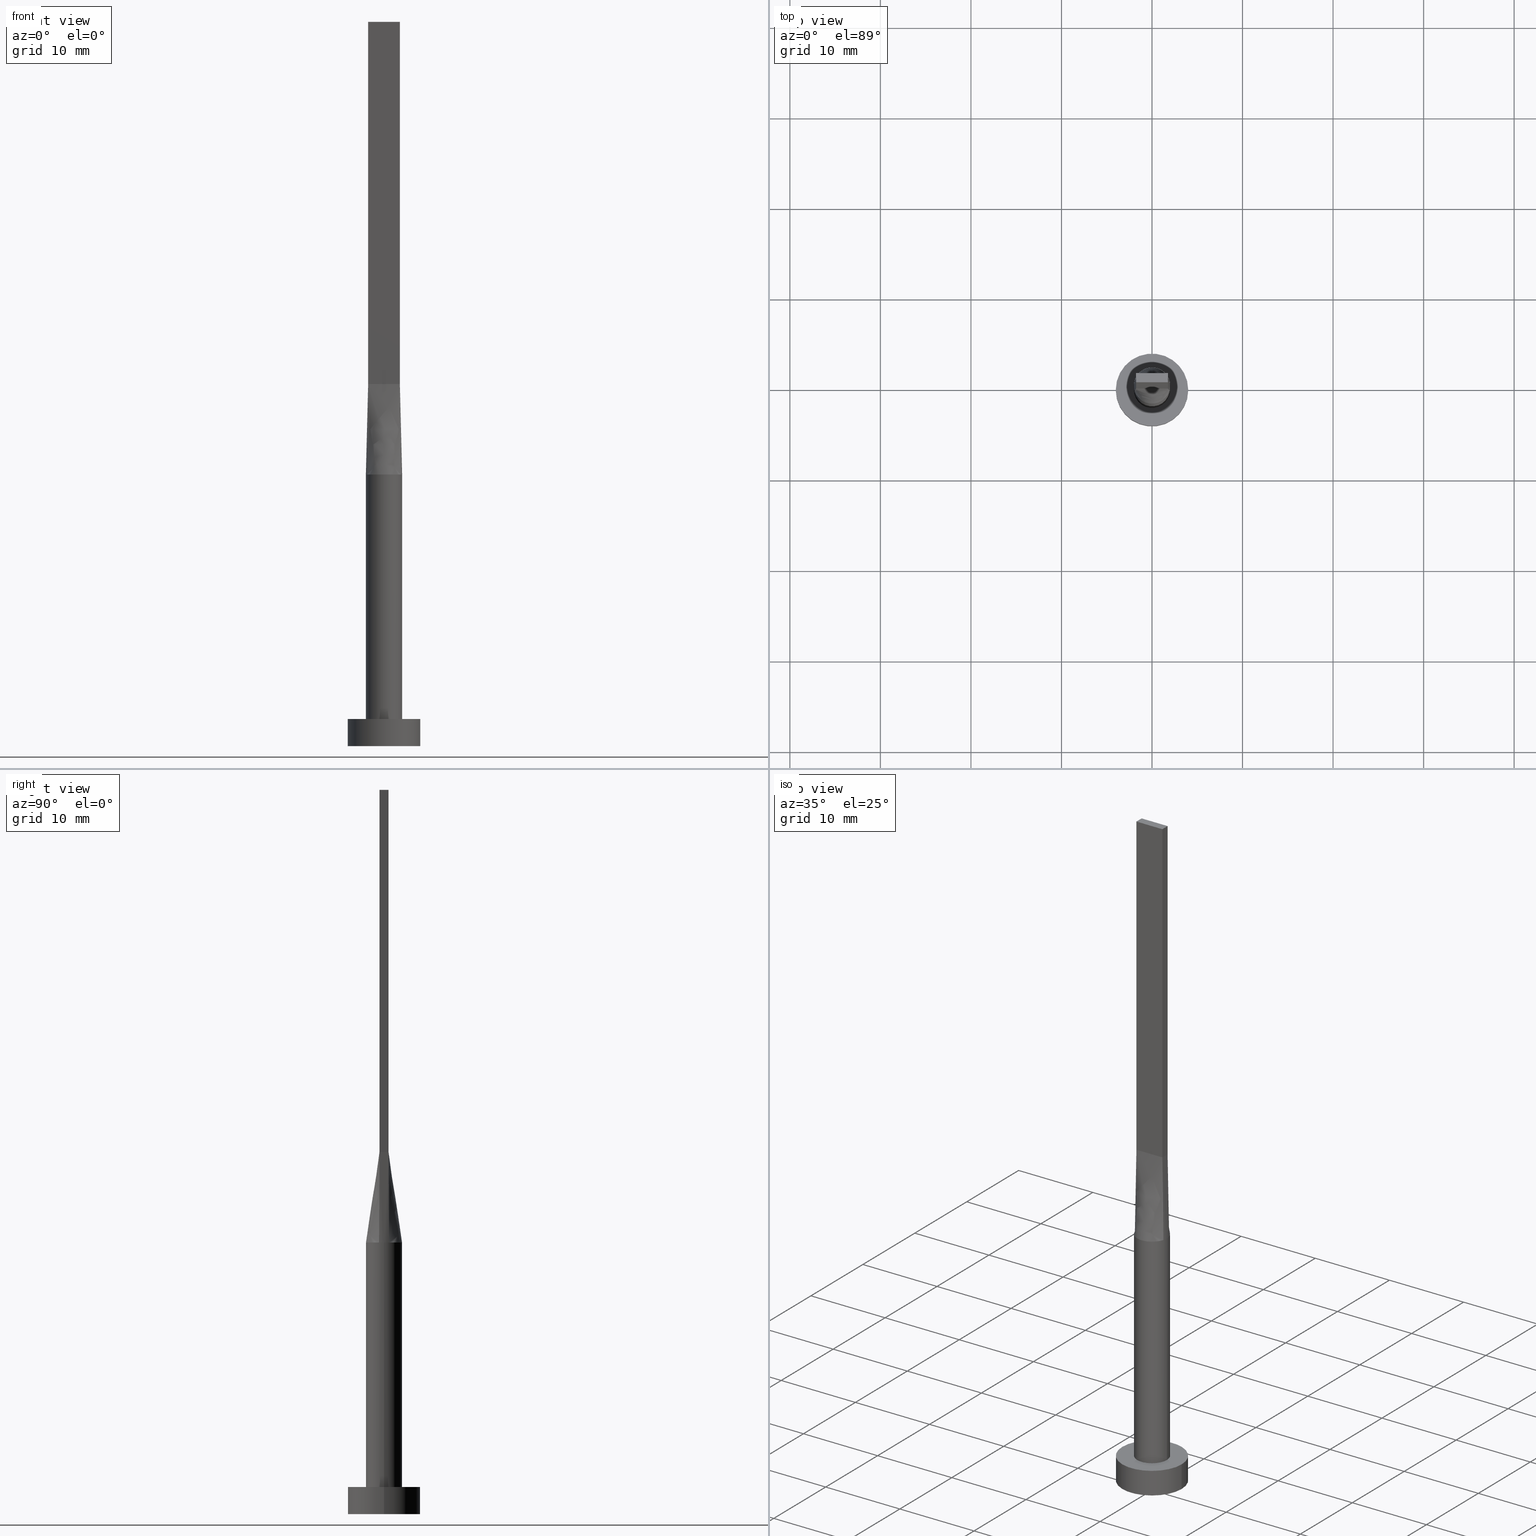
[diagram: canonical four-view strip — front | top / right | iso, engineering-drawing reading convention]
A machine part, canonical four-view strip (front | top / right | iso — engineering-drawing reading convention). The complete STEP part file that produces these views, byte-faithful:
ISO-10303-21;
HEADER;
FILE_DESCRIPTION (( 'STEP AP203' ),
    '1' );
FILE_NAME ('6dca.STEP',
    '2023-02-13T12:16:20',
    ( '' ),
    ( '' ),
    'SwSTEP 2.0',
    'SolidWorks 2019',
    '' );
FILE_SCHEMA (( 'CONFIG_CONTROL_DESIGN' ));
ENDSEC;

DATA;
#1 = AXIS2_PLACEMENT_3D ( 'NONE', #354, #523, #533 ) ;
#2 = ORIENTED_EDGE ( 'NONE', *, *, #118, .F. ) ;
#3 = EDGE_CURVE ( 'NONE', #328, #165, #161, .T. ) ;
#4 = FACE_OUTER_BOUND ( 'NONE', #305, .T. ) ;
#5 = DIRECTION ( 'NONE',  ( -2.168404344971009361E-16, -1.000000000000000000, 0.000000000000000000 ) ) ;
#6 = ADVANCED_FACE ( 'NONE', ( #524 ), #38, .T. ) ;
#7 = ORIENTED_EDGE ( 'NONE', *, *, #378, .T. ) ;
#8 = CARTESIAN_POINT ( 'NONE',  ( -1.749999999999999778, -0.3333333333333330373, 39.99999999999999289 ) ) ;
#9 = DIRECTION ( 'NONE',  ( -1.000000000000000000, 0.000000000000000000, 0.000000000000000000 ) ) ;
#10 = ADVANCED_BREP_SHAPE_REPRESENTATION ( '6dca', ( #98, #486 ), #19 ) ;
#11 = CARTESIAN_POINT ( 'NONE',  ( 0.5022746254375793917, -1.951069421695588169, 29.99999999999999645 ) ) ;
#12 = VECTOR ( 'NONE', #211, 1000.000000000000000 ) ;
#13 = PRODUCT_DEFINITION_SHAPE ( 'NONE', 'NONE',  #422 ) ;
#14 = APPLICATION_PROTOCOL_DEFINITION ( 'international standard', 'config_control_design', 1994, #179 ) ;
#15 = DIRECTION ( 'NONE',  ( -1.000000000000000000, 6.195440985631454085E-17, 0.000000000000000000 ) ) ;
#16 = DIRECTION ( 'NONE',  ( -0.000000000000000000, -0.000000000000000000, -1.000000000000000000 ) ) ;
#17 = CARTESIAN_POINT ( 'NONE',  ( 1.750000000000000000, -0.4999999999999997780, 80.00000000000000000 ) ) ;
#18 = DATE_AND_TIME ( #358, #202 ) ;
#19 =( GEOMETRIC_REPRESENTATION_CONTEXT ( 3 ) GLOBAL_UNCERTAINTY_ASSIGNED_CONTEXT ( ( #131 ) ) GLOBAL_UNIT_ASSIGNED_CONTEXT ( ( #222, #184, #104 ) ) REPRESENTATION_CONTEXT ( 'NONE', 'WORKASPACE' ) );
#20 = DIRECTION ( 'NONE',  ( -0.01730198768854150290, 0.004943425053868997360, 0.9998380887777591486 ) ) ;
#21 = B_SPLINE_SURFACE_WITH_KNOTS ( 'NONE', 3, 1, ( 
 ( #560, #380 ),
 ( #290, #512 ),
 ( #373, #239 ),
 ( #384, #32 ),
 ( #29, #476 ),
 ( #194, #111 ) ),
 .UNSPECIFIED., .F., .F., .F.,
 ( 4, 2, 4 ),
 ( 2, 2 ),
 ( 0.000000000000000000, 0.5000000000000000000, 1.000000000000000000 ),
 ( 0.000000000000000000, 1.000000000000000000 ),
 .UNSPECIFIED. ) ;
#22 = EDGE_CURVE ( 'NONE', #352, #441, #483, .T. ) ;
#23 = PERSON ( 'NEUR�EN�', 'NEUR�EN�', 'NEUR�EN�', ('NEUR�EN�'), ('NEUR�EN�'), ('NEUR�EN�') ) ;
#24 = ORIENTED_EDGE ( 'NONE', *, *, #63, .F. ) ;
#25 = SHAPE_DEFINITION_REPRESENTATION ( #13, #10 ) ;
#26 = ORIENTED_EDGE ( 'NONE', *, *, #153, .T. ) ;
#27 = DIRECTION ( 'NONE',  ( 0.000000000000000000, 0.000000000000000000, 1.000000000000000000 ) ) ;
#28 = AXIS2_PLACEMENT_3D ( 'NONE', #277, #136, #367 ) ;
#29 = CARTESIAN_POINT ( 'NONE',  ( 1.973362360690451567, 0.3733416268639386804, 30.00000000000000355 ) ) ;
#30 = PERSON_AND_ORGANIZATION ( #23, #193 ) ;
#31 = ORIENTED_EDGE ( 'NONE', *, *, #63, .T. ) ;
#32 = CARTESIAN_POINT ( 'NONE',  ( 1.749999999999999778, 0.1666666666666669905, 39.99999999999999289 ) ) ;
#33 = CARTESIAN_POINT ( 'NONE',  ( -1.812374357931688884, 0.8669367617086288780, 30.00000000000001066 ) ) ;
#34 = VERTEX_POINT ( 'NONE', #92 ) ;
#35 = CC_DESIGN_PERSON_AND_ORGANIZATION_ASSIGNMENT ( #519, #376, ( #167 ) ) ;
#36 = CARTESIAN_POINT ( 'NONE',  ( 1.923154993136894975, 0.5494733089275741778, 30.00000000000000000 ) ) ;
#37 = DIRECTION ( 'NONE',  ( 1.000000000000000000, 0.000000000000000000, -0.000000000000000000 ) ) ;
#38 = CYLINDRICAL_SURFACE ( 'NONE', #224, 4.000000000000000000 ) ;
#39 = ORIENTED_EDGE ( 'NONE', *, *, #564, .T. ) ;
#40 = LINE ( 'NONE', #492, #478 ) ;
#41 = CARTESIAN_POINT ( 'NONE',  ( 1.616149014776643522, -1.193458220519943547, 30.00000000000000711 ) ) ;
#42 = EDGE_CURVE ( 'NONE', #86, #341, #96, .T. ) ;
#43 = VERTEX_POINT ( 'NONE', #145 ) ;
#44 = ORIENTED_EDGE ( 'NONE', *, *, #543, .T. ) ;
#45 = CARTESIAN_POINT ( 'NONE',  ( -1.749999999999999778, 0.5000000000000002220, 40.00000000000000000 ) ) ;
#46 = AXIS2_PLACEMENT_3D ( 'NONE', #84, #263, #531 ) ;
#47 = CARTESIAN_POINT ( 'NONE',  ( 1.812374357931689328, 0.8669367617086293221, 30.00000000000000355 ) ) ;
#48 = ORIENTED_EDGE ( 'NONE', *, *, #155, .F. ) ;
#49 = CARTESIAN_POINT ( 'NONE',  ( -1.999999999999999556, -0.1867399261870113791, 30.00000000000000000 ) ) ;
#50 = CARTESIAN_POINT ( 'NONE',  ( -1.749999999999999778, 0.5000000000000002220, 80.00000000000000000 ) ) ;
#51 = CARTESIAN_POINT ( 'NONE',  ( 0.000000000000000000, 0.000000000000000000, 30.00000000000000000 ) ) ;
#52 = CARTESIAN_POINT ( 'NONE',  ( -0.9545234919502417759, -1.774214358793529067, 30.00000000000000355 ) ) ;
#53 = VERTEX_POINT ( 'NONE', #330 ) ;
#54 = APPROVAL_PERSON_ORGANIZATION ( #513, #232, #322 ) ;
#55 = ORIENTED_EDGE ( 'NONE', *, *, #42, .T. ) ;
#56 = AXIS2_PLACEMENT_3D ( 'NONE', #321, #283, #467 ) ;
#57 = CARTESIAN_POINT ( 'NONE',  ( 2.000000000000000000, 2.449293598294706414E-16, 30.00000000000000000 ) ) ;
#58 = CARTESIAN_POINT ( 'NONE',  ( 0.000000000000000000, 0.000000000000000000, 0.000000000000000000 ) ) ;
#59 = CARTESIAN_POINT ( 'NONE',  ( -2.000000000000000000, 0.000000000000000000, 30.00000000000000000 ) ) ;
#60 = EDGE_CURVE ( 'NONE', #301, #353, #325, .T. ) ;
#61 = APPROVAL_ROLE ( '' ) ;
#62 = DIRECTION ( 'NONE',  ( -2.168404344971009361E-16, -1.000000000000000000, 0.000000000000000000 ) ) ;
#63 = EDGE_CURVE ( 'NONE', #53, #352, #233, .T. ) ;
#64 = CARTESIAN_POINT ( 'NONE',  ( -1.750000000000000000, -0.4999999999999995559, 40.00000000000000000 ) ) ;
#65 = CIRCLE ( 'NONE', #56, 2.000000000000000000 ) ;
#66 = CALENDAR_DATE ( 2023, 13, 2 ) ;
#67 = EDGE_LOOP ( 'NONE', ( #79, #487, #26, #7 ) ) ;
#68 = FACE_OUTER_BOUND ( 'NONE', #342, .T. ) ;
#69 = DATE_AND_TIME ( #76, #269 ) ;
#70 = EDGE_LOOP ( 'NONE', ( #78, #162, #396, #267, #410 ) ) ;
#71 = CARTESIAN_POINT ( 'NONE',  ( 0.1458333333333326209, 0.5000000000000002220, 40.00000000000000000 ) ) ;
#72 = DIRECTION ( 'NONE',  ( 0.000000000000000000, 0.000000000000000000, 1.000000000000000000 ) ) ;
#73 = CC_DESIGN_SECURITY_CLASSIFICATION ( #167, ( #298 ) ) ;
#74 = ORIENTED_EDGE ( 'NONE', *, *, #281, .T. ) ;
#75 = CARTESIAN_POINT ( 'NONE',  ( 1.923047895281646325, 0.5494422557947561403, 30.00000000000000000 ) ) ;
#76 = CALENDAR_DATE ( 2023, 13, 2 ) ;
#77 = CARTESIAN_POINT ( 'NONE',  ( -1.166666666666666519, 0.5000000000000002220, 39.99999999999999289 ) ) ;
#78 = ORIENTED_EDGE ( 'NONE', *, *, #160, .T. ) ;
#79 = ORIENTED_EDGE ( 'NONE', *, *, #169, .F. ) ;
#80 = CARTESIAN_POINT ( 'NONE',  ( -1.973362360690451345, -0.3733416268639377367, 30.00000000000000355 ) ) ;
#81 = CIRCLE ( 'NONE', #571, 4.000000000000000000 ) ;
#82 = CARTESIAN_POINT ( 'NONE',  ( -1.749999999999999778, 0.5000000000000002220, 80.00000000000000000 ) ) ;
#83 = ORIENTED_EDGE ( 'NONE', *, *, #3, .F. ) ;
#84 = CARTESIAN_POINT ( 'NONE',  ( 0.000000000000000000, 0.000000000000000000, 0.000000000000000000 ) ) ;
#85 = LINE ( 'NONE', #50, #134 ) ;
#86 = VERTEX_POINT ( 'NONE', #17 ) ;
#87 = ORIENTED_EDGE ( 'NONE', *, *, #132, .F. ) ;
#88 = DIRECTION ( 'NONE',  ( -0.000000000000000000, -0.000000000000000000, -1.000000000000000000 ) ) ;
#89 = ORIENTED_EDGE ( 'NONE', *, *, #118, .T. ) ;
#90 = CARTESIAN_POINT ( 'NONE',  ( -2.000000000000000000, 0.000000000000000000, 3.000000000000000000 ) ) ;
#91 = CARTESIAN_POINT ( 'NONE',  ( -0.2916666666666685725, -0.4999999999999995559, 39.99999999999999289 ) ) ;
#92 = CARTESIAN_POINT ( 'NONE',  ( 2.000000000000000000, 2.449293598294706414E-16, 3.000000000000000000 ) ) ;
#93 = ADVANCED_FACE ( 'NONE', ( #425 ), #536, .T. ) ;
#94 = CARTESIAN_POINT ( 'NONE',  ( 0.000000000000000000, 0.000000000000000000, 3.000000000000000000 ) ) ;
#95 = B_SPLINE_SURFACE_WITH_KNOTS ( 'NONE', 3, 1, ( 
 ( #450, #45 ),
 ( #124, #126 ),
 ( #398, #208 ),
 ( #49, #218 ),
 ( #80, #8 ),
 ( #455, #302 ) ),
 .UNSPECIFIED., .F., .F., .F.,
 ( 4, 2, 4 ),
 ( 2, 2 ),
 ( 0.000000000000000000, 0.5000000000000000000, 1.000000000000000000 ),
 ( 0.000000000000000000, 1.000000000000000000 ),
 .UNSPECIFIED. ) ;
#96 = LINE ( 'NONE', #152, #499 ) ;
#97 = ADVANCED_FACE ( 'NONE', ( #164 ), #344, .F. ) ;
#98 = MANIFOLD_SOLID_BREP ( 'P�idat vysunut�m5', #157 ) ;
#99 = ORIENTED_EDGE ( 'NONE', *, *, #3, .T. ) ;
#100 = DIRECTION ( 'NONE',  ( 1.000000000000000000, 0.000000000000000000, 0.000000000000000000 ) ) ;
#101 = FACE_OUTER_BOUND ( 'NONE', #189, .T. ) ;
#102 = DIRECTION ( 'NONE',  ( -0.000000000000000000, -0.000000000000000000, -1.000000000000000000 ) ) ;
#103 = ORIENTED_EDGE ( 'NONE', *, *, #274, .T. ) ;
#104 =( NAMED_UNIT ( * ) SI_UNIT ( $, .STERADIAN. ) SOLID_ANGLE_UNIT ( ) );
#105 = FACE_BOUND ( 'NONE', #557, .T. ) ;
#106 = APPROVAL_ROLE ( '' ) ;
#107 = CARTESIAN_POINT ( 'NONE',  ( 0.000000000000000000, 0.000000000000000000, 3.000000000000000000 ) ) ;
#108 = AXIS2_PLACEMENT_3D ( 'NONE', #168, #270, #491 ) ;
#109 = CARTESIAN_POINT ( 'NONE',  ( 1.749999999999998890, 0.5000000000000002220, 40.00000000000000000 ) ) ;
#110 = APPROVAL_DATE_TIME ( #288, #232 ) ;
#111 = CARTESIAN_POINT ( 'NONE',  ( 1.749999999999999778, 0.5000000000000002220, 40.00000000000000000 ) ) ;
#112 = CC_DESIGN_APPROVAL ( #477, ( #422 ) ) ;
#113 = CARTESIAN_POINT ( 'NONE',  ( 0.5022746254375803909, 1.951069421695587947, 29.99999999999999645 ) ) ;
#114 = ADVANCED_FACE ( 'NONE', ( #395 ), #121, .T. ) ;
#115 = CARTESIAN_POINT ( 'NONE',  ( 1.155438169178558461, 1.647245198242353714, 29.99999999999999645 ) ) ;
#116 = CARTESIAN_POINT ( 'NONE',  ( -0.5022746254375797248, 1.951069421695588169, 29.99999999999999645 ) ) ;
#117 = CARTESIAN_POINT ( 'NONE',  ( 1.923186205402444449, -0.5494823831763672173, 30.00000000000000000 ) ) ;
#118 = EDGE_CURVE ( 'NONE', #328, #43, #85, .T. ) ;
#119 = ORIENTED_EDGE ( 'NONE', *, *, #22, .T. ) ;
#120 = LINE ( 'NONE', #526, #12 ) ;
#121 = CYLINDRICAL_SURFACE ( 'NONE', #108, 4.000000000000000000 ) ;
#122 = AXIS2_PLACEMENT_3D ( 'NONE', #538, #580, #268 ) ;
#123 = CIRCLE ( 'NONE', #510, 2.000000000000000000 ) ;
#124 = CARTESIAN_POINT ( 'NONE',  ( -1.973362360690451567, 0.3733416268639390134, 30.00000000000000000 ) ) ;
#125 = CARTESIAN_POINT ( 'NONE',  ( 0.9545234919502409987, 1.774214358793529955, 30.00000000000000355 ) ) ;
#126 = CARTESIAN_POINT ( 'NONE',  ( -1.749999999999999778, 0.3333333333333334259, 39.99999999999999289 ) ) ;
#127 = CARTESIAN_POINT ( 'NONE',  ( -1.486037034853320060, -1.356520562679217390, 29.99999999999999645 ) ) ;
#128 = CARTESIAN_POINT ( 'NONE',  ( 0.2514338042514535632, 1.999999999999999556, 30.00000000000000355 ) ) ;
#129 = CARTESIAN_POINT ( 'NONE',  ( -1.923179810488875541, 0.5494804890868837388, 30.00000000000000000 ) ) ;
#130 = DIRECTION ( 'NONE',  ( -1.000000000000000000, -0.000000000000000000, -0.000000000000000000 ) ) ;
#131 = UNCERTAINTY_MEASURE_WITH_UNIT (LENGTH_MEASURE( 1.000000000000000082E-05 ), #222, 'distance_accuracy_value', 'NONE');
#132 = EDGE_CURVE ( 'NONE', #413, #165, #172, .T. ) ;
#133 = CARTESIAN_POINT ( 'NONE',  ( -0.5022746254375797248, 1.951069421695588169, 29.99999999999999645 ) ) ;
#134 = VECTOR ( 'NONE', #5, 1000.000000000000000 ) ;
#135 = CARTESIAN_POINT ( 'NONE',  ( 1.486037034853319616, -1.356520562679219166, 30.00000000000001066 ) ) ;
#136 = DIRECTION ( 'NONE',  ( 0.000000000000000000, 0.000000000000000000, 1.000000000000000000 ) ) ;
#137 = CC_DESIGN_PERSON_AND_ORGANIZATION_ASSIGNMENT ( #237, #565, ( #298 ) ) ;
#138 = DIRECTION ( 'NONE',  ( 0.000000000000000000, 0.000000000000000000, 1.000000000000000000 ) ) ;
#139 = CARTESIAN_POINT ( 'NONE',  ( 4.000000000000000000, 4.898587196589412829E-16, 3.000000000000000000 ) ) ;
#140 = PERSON_AND_ORGANIZATION ( #23, #193 ) ;
#141 = AXIS2_PLACEMENT_3D ( 'NONE', #350, #213, #581 ) ;
#142 = CARTESIAN_POINT ( 'NONE',  ( -1.749999999999999778, 0.5000000000000002220, 40.00000000000000000 ) ) ;
#143 = CARTESIAN_POINT ( 'NONE',  ( -1.750000000000000000, -0.4999999999999995559, 40.00000000000000000 ) ) ;
#144 = DIRECTION ( 'NONE',  ( 1.000000000000000000, 0.000000000000000000, 0.000000000000000000 ) ) ;
#145 = CARTESIAN_POINT ( 'NONE',  ( -1.750000000000000000, -0.4999999999999995559, 80.00000000000000000 ) ) ;
#146 = PERSON_AND_ORGANIZATION_ROLE ( 'creator' ) ;
#147 = LINE ( 'NONE', #142, #562 ) ;
#148 = CC_DESIGN_PERSON_AND_ORGANIZATION_ASSIGNMENT ( #30, #146, ( #422 ) ) ;
#149 = CIRCLE ( 'NONE', #509, 2.000000000000000000 ) ;
#150 = APPROVAL_STATUS ( 'not_yet_approved' ) ;
#151 = CARTESIAN_POINT ( 'NONE',  ( -1.749999999999999778, 0.5000000000000002220, 80.00000000000000000 ) ) ;
#152 = CARTESIAN_POINT ( 'NONE',  ( 1.750000000000000000, -0.4999999999999997780, 80.00000000000000000 ) ) ;
#153 = EDGE_CURVE ( 'NONE', #471, #559, #309, .T. ) ;
#154 = CARTESIAN_POINT ( 'NONE',  ( 1.020833333333332371, 0.5000000000000002220, 39.99999999999999289 ) ) ;
#155 = EDGE_CURVE ( 'NONE', #53, #34, #223, .T. ) ;
#156 = CARTESIAN_POINT ( 'NONE',  ( -1.486037034853319616, 1.356520562679218056, 30.00000000000000355 ) ) ;
#157 = CLOSED_SHELL ( 'NONE', ( #409, #6, #114, #236, #501, #432, #93, #338, #494, #346, #469, #527, #216, #97, #190 ) ) ;
#158 = ORIENTED_EDGE ( 'NONE', *, *, #155, .T. ) ;
#159 = CARTESIAN_POINT ( 'NONE',  ( -1.155438169178558017, 1.647245198242353936, 30.00000000000000711 ) ) ;
#160 = EDGE_CURVE ( 'NONE', #441, #518, #406, .T. ) ;
#161 = LINE ( 'NONE', #205, #541 ) ;
#162 = ORIENTED_EDGE ( 'NONE', *, *, #574, .T. ) ;
#163 = CARTESIAN_POINT ( 'NONE',  ( -2.000000000000000000, 8.710755549421510381E-17, 30.00000000000000000 ) ) ;
#164 = FACE_OUTER_BOUND ( 'NONE', #385, .T. ) ;
#165 = VERTEX_POINT ( 'NONE', #551 ) ;
#166 = CYLINDRICAL_SURFACE ( 'NONE', #347, 2.000000000000000000 ) ;
#167 = SECURITY_CLASSIFICATION ( '', '', #426 ) ;
#168 = CARTESIAN_POINT ( 'NONE',  ( 0.000000000000000000, 0.000000000000000000, 3.000000000000000000 ) ) ;
#169 = EDGE_CURVE ( 'NONE', #530, #241, #185, .T. ) ;
#170 = DIRECTION ( 'NONE',  ( -1.000000000000000000, 0.000000000000000000, 0.000000000000000000 ) ) ;
#171 = FACE_OUTER_BOUND ( 'NONE', #70, .T. ) ;
#172 = LINE ( 'NONE', #539, #214 ) ;
#173 = ORIENTED_EDGE ( 'NONE', *, *, #175, .T. ) ;
#174 = PLANE ( 'NONE',  #517 ) ;
#175 = EDGE_CURVE ( 'NONE', #484, #238, #459, .T. ) ;
#176 = CARTESIAN_POINT ( 'NONE',  ( 1.879022738048941710, -0.7035303061092221810, 30.00000000000000000 ) ) ;
#177 = CARTESIAN_POINT ( 'NONE',  ( 1.155438169178558017, -1.647245198242354158, 30.00000000000001066 ) ) ;
#178 = VECTOR ( 'NONE', #88, 1000.000000000000000 ) ;
#179 = APPLICATION_CONTEXT ( 'configuration controlled 3d designs of mechanical parts and assemblies' ) ;
#180 = CARTESIAN_POINT ( 'NONE',  ( -1.812374357931688884, 0.8669367617086288780, 30.00000000000001066 ) ) ;
#181 = PRODUCT ( '6dca', '6dca', '', ( #228 ) ) ;
#182 = VECTOR ( 'NONE', #365, 1000.000000000000227 ) ;
#183 = ORIENTED_EDGE ( 'NONE', *, *, #564, .F. ) ;
#184 =( NAMED_UNIT ( * ) PLANE_ANGLE_UNIT ( ) SI_UNIT ( $, .RADIAN. ) );
#185 = LINE ( 'NONE', #139, #375 ) ;
#186 = FACE_OUTER_BOUND ( 'NONE', #444, .T. ) ;
#187 = DESIGN_CONTEXT ( 'detailed design', #265, 'design' ) ;
#188 = CARTESIAN_POINT ( 'NONE',  ( 1.750000000000000000, -0.4999999999999997780, 40.00000000000000000 ) ) ;
#189 = EDGE_LOOP ( 'NONE', ( #39, #449, #386, #217 ) ) ;
#190 = ADVANCED_FACE ( 'NONE', ( #318 ), #227, .T. ) ;
#191 = VECTOR ( 'NONE', #361, 1000.000000000000000 ) ;
#192 = PERSON_AND_ORGANIZATION_ROLE ( 'design_supplier' ) ;
#193 = ORGANIZATION ( 'NEUR�EN�', 'NEUR�EN�', '' ) ;
#194 = CARTESIAN_POINT ( 'NONE',  ( 1.923047895281646325, 0.5494422557947563623, 30.00000000000000000 ) ) ;
#195 = AXIS2_PLACEMENT_3D ( 'NONE', #107, #27, #286 ) ;
#196 = DIRECTION ( 'NONE',  ( 1.000000000000000000, 0.000000000000000000, 0.000000000000000000 ) ) ;
#197 = DATE_TIME_ROLE ( 'classification_date' ) ;
#198 = CARTESIAN_POINT ( 'NONE',  ( 1.749999999999999778, 0.5000000000000002220, 80.00000000000000000 ) ) ;
#199 = CARTESIAN_POINT ( 'NONE',  ( -0.1458333333333353687, -0.4999999999999995559, 40.00000000000000000 ) ) ;
#200 = CARTESIAN_POINT ( 'NONE',  ( 0.2916666666666658525, 0.5000000000000002220, 39.99999999999999289 ) ) ;
#201 = ORIENTED_EDGE ( 'NONE', *, *, #22, .F. ) ;
#202 = LOCAL_TIME ( 13, 16, 20.00000000000000000, #414 ) ;
#203 = ORIENTED_EDGE ( 'NONE', *, *, #153, .F. ) ;
#204 = CARTESIAN_POINT ( 'NONE',  ( -1.923161340940673369, -0.5494751859438878894, 30.00000000000000000 ) ) ;
#205 = CARTESIAN_POINT ( 'NONE',  ( -1.749999999999999778, 0.5000000000000002220, 80.00000000000000000 ) ) ;
#206 = CARTESIAN_POINT ( 'NONE',  ( 1.749999999999999778, 0.5000000000000002220, 80.00000000000000000 ) ) ;
#207 = CARTESIAN_POINT ( 'NONE',  ( 0.000000000000000000, 0.000000000000000000, 3.000000000000000000 ) ) ;
#208 = CARTESIAN_POINT ( 'NONE',  ( -1.749999999999999778, 0.1666666666666667129, 39.99999999999999289 ) ) ;
#209 = CARTESIAN_POINT ( 'NONE',  ( 1.812374357931689106, -0.8669367617086289890, 30.00000000000001066 ) ) ;
#210 = EDGE_LOOP ( 'NONE', ( #48, #355, #402, #259, #368, #103 ) ) ;
#211 = DIRECTION ( 'NONE',  ( 1.000000000000000000, -6.195440985631454085E-17, 0.000000000000000000 ) ) ;
#212 = VECTOR ( 'NONE', #417, 1000.000000000000000 ) ;
#213 = DIRECTION ( 'NONE',  ( -1.000000000000000000, -2.168404344971008868E-16, 0.000000000000000000 ) ) ;
#214 = VECTOR ( 'NONE', #130, 1000.000000000000000 ) ;
#215 = CARTESIAN_POINT ( 'NONE',  ( 0.5022746254375803909, 1.951069421695587947, 29.99999999999999645 ) ) ;
#216 = ADVANCED_FACE ( 'NONE', ( #101 ), #408, .F. ) ;
#217 = ORIENTED_EDGE ( 'NONE', *, *, #549, .T. ) ;
#218 = CARTESIAN_POINT ( 'NONE',  ( -1.749999999999999778, -0.1666666666666665186, 39.99999999999999289 ) ) ;
#219 = CARTESIAN_POINT ( 'NONE',  ( 1.458333333333332815, -0.4999999999999996669, 39.99999999999999289 ) ) ;
#220 = DIRECTION ( 'NONE',  ( -1.000000000000000000, 0.000000000000000000, 0.000000000000000000 ) ) ;
#221 = CARTESIAN_POINT ( 'NONE',  ( -1.155438169178558017, 1.647245198242353936, 30.00000000000000711 ) ) ;
#222 =( LENGTH_UNIT ( ) NAMED_UNIT ( * ) SI_UNIT ( .MILLI., .METRE. ) );
#223 = LINE ( 'NONE', #57, #278 ) ;
#224 = AXIS2_PLACEMENT_3D ( 'NONE', #207, #389, #170 ) ;
#225 = ORIENTED_EDGE ( 'NONE', *, *, #429, .T. ) ;
#226 = DIRECTION ( 'NONE',  ( 2.168404344971009361E-16, 1.000000000000000000, 0.000000000000000000 ) ) ;
#227 = PLANE ( 'NONE',  #28 ) ;
#228 = MECHANICAL_CONTEXT ( 'NONE', #179, 'mechanical' ) ;
#229 = DIRECTION ( 'NONE',  ( 0.000000000000000000, 0.000000000000000000, 1.000000000000000000 ) ) ;
#230 = DIRECTION ( 'NONE',  ( 1.000000000000000000, 0.000000000000000000, 0.000000000000000000 ) ) ;
#231 = CIRCLE ( 'NONE', #1, 2.000000000000000000 ) ;
#232 = APPROVAL ( #470, 'NEUR�EN�' ) ;
#233 = CIRCLE ( 'NONE', #247, 2.000000000000000000 ) ;
#234 = DIRECTION ( 'NONE',  ( 6.195440985631454085E-17, 1.000000000000000000, -0.000000000000000000 ) ) ;
#235 = CARTESIAN_POINT ( 'NONE',  ( -1.166666666666667851, -0.4999999999999995559, 39.99999999999999289 ) ) ;
#236 = ADVANCED_FACE ( 'NONE', ( #105, #186 ), #362, .T. ) ;
#237 = PERSON_AND_ORGANIZATION ( #23, #193 ) ;
#238 = VERTEX_POINT ( 'NONE', #188 ) ;
#239 = CARTESIAN_POINT ( 'NONE',  ( 1.749999999999999778, -0.1666666666666663243, 39.99999999999999289 ) ) ;
#240 = DIRECTION ( 'NONE',  ( -0.01730198768854152372, -0.004943425053868953992, -0.9998380887777591486 ) ) ;
#241 = VERTEX_POINT ( 'NONE', #558 ) ;
#242 = CARTESIAN_POINT ( 'NONE',  ( -0.2916666666666674623, 0.5000000000000002220, 39.99999999999999289 ) ) ;
#243 = CARTESIAN_POINT ( 'NONE',  ( -1.879022738048942598, -0.7035303061092208488, 30.00000000000000355 ) ) ;
#244 = PERSON_AND_ORGANIZATION ( #23, #193 ) ;
#245 = ORIENTED_EDGE ( 'NONE', *, *, #388, .F. ) ;
#246 = CARTESIAN_POINT ( 'NONE',  ( 1.166666666666665630, 0.5000000000000002220, 39.99999999999999289 ) ) ;
#247 = AXIS2_PLACEMENT_3D ( 'NONE', #371, #72, #196 ) ;
#248 = ORIENTED_EDGE ( 'NONE', *, *, #264, .F. ) ;
#249 = PERSON_AND_ORGANIZATION ( #23, #193 ) ;
#250 = CARTESIAN_POINT ( 'NONE',  ( 0.9545234919502409987, 1.774214358793529955, 30.00000000000000355 ) ) ;
#251 = ORIENTED_EDGE ( 'NONE', *, *, #42, .F. ) ;
#252 = ORIENTED_EDGE ( 'NONE', *, *, #319, .F. ) ;
#253 = CARTESIAN_POINT ( 'NONE',  ( -1.923047895281646325, 0.5494422557947555852, 30.00000000000000000 ) ) ;
#254 = EDGE_CURVE ( 'NONE', #518, #383, #315, .T. ) ;
#255 = VECTOR ( 'NONE', #442, 1000.000000000000227 ) ;
#256 = ORIENTED_EDGE ( 'NONE', *, *, #319, .T. ) ;
#257 = FACE_OUTER_BOUND ( 'NONE', #297, .T. ) ;
#258 = VECTOR ( 'NONE', #514, 1000.000000000000000 ) ;
#259 = ORIENTED_EDGE ( 'NONE', *, *, #574, .F. ) ;
#260 = ORIENTED_EDGE ( 'NONE', *, *, #274, .F. ) ;
#261 = DIRECTION ( 'NONE',  ( 0.000000000000000000, -1.000000000000000000, 0.000000000000000000 ) ) ;
#262 = CARTESIAN_POINT ( 'NONE',  ( 0.1458333333333314275, -0.4999999999999995559, 39.99999999999999289 ) ) ;
#263 = DIRECTION ( 'NONE',  ( 0.000000000000000000, 0.000000000000000000, 1.000000000000000000 ) ) ;
#264 = EDGE_CURVE ( 'NONE', #352, #413, #279, .T. ) ;
#265 = APPLICATION_CONTEXT ( 'configuration controlled 3d designs of mechanical parts and assemblies' ) ;
#266 = ORIENTED_EDGE ( 'NONE', *, *, #555, .F. ) ;
#267 = ORIENTED_EDGE ( 'NONE', *, *, #272, .F. ) ;
#268 = DIRECTION ( 'NONE',  ( -1.000000000000000000, 0.000000000000000000, 0.000000000000000000 ) ) ;
#269 = LOCAL_TIME ( 13, 16, 20.00000000000000000, #287 ) ;
#270 = DIRECTION ( 'NONE',  ( -0.000000000000000000, -0.000000000000000000, -1.000000000000000000 ) ) ;
#271 = AXIS2_PLACEMENT_3D ( 'NONE', #505, #234, #15 ) ;
#272 = EDGE_CURVE ( 'NONE', #165, #301, #147, .T. ) ;
#273 = DIRECTION ( 'NONE',  ( 0.000000000000000000, -0.000000000000000000, -1.000000000000000000 ) ) ;
#274 = EDGE_CURVE ( 'NONE', #383, #34, #123, .T. ) ;
#275 = CARTESIAN_POINT ( 'NONE',  ( 0.000000000000000000, 0.000000000000000000, 30.00000000000000000 ) ) ;
#276 = DIRECTION ( 'NONE',  ( 0.000000000000000000, 0.000000000000000000, 1.000000000000000000 ) ) ;
#277 = CARTESIAN_POINT ( 'NONE',  ( 0.000000000000000000, 0.000000000000000000, 80.00000000000000000 ) ) ;
#278 = VECTOR ( 'NONE', #280, 1000.000000000000000 ) ;
#279 = LINE ( 'NONE', #462, #182 ) ;
#280 = DIRECTION ( 'NONE',  ( -0.000000000000000000, -0.000000000000000000, -1.000000000000000000 ) ) ;
#281 = EDGE_CURVE ( 'NONE', #530, #471, #316, .T. ) ;
#282 = CARTESIAN_POINT ( 'NONE',  ( -1.616149014776643744, -1.193458220519941326, 29.99999999999999645 ) ) ;
#283 = DIRECTION ( 'NONE',  ( 0.000000000000000000, 0.000000000000000000, 1.000000000000000000 ) ) ;
#284 = VECTOR ( 'NONE', #102, 1000.000000000000000 ) ;
#285 = CARTESIAN_POINT ( 'NONE',  ( -1.836523947640823273, -0.5247211278973773485, 35.00000000000000000 ) ) ;
#286 = DIRECTION ( 'NONE',  ( 1.000000000000000000, 0.000000000000000000, 0.000000000000000000 ) ) ;
#287 = COORDINATED_UNIVERSAL_TIME_OFFSET ( 1, 0, .AHEAD. ) ;
#288 = DATE_AND_TIME ( #480, #335 ) ;
#289 = ORIENTED_EDGE ( 'NONE', *, *, #254, .F. ) ;
#290 = CARTESIAN_POINT ( 'NONE',  ( 1.973362360690451567, -0.3733416268639390689, 30.00000000000000000 ) ) ;
#291 = CARTESIAN_POINT ( 'NONE',  ( -0.1458333333333340365, 0.5000000000000002220, 39.99999999999999289 ) ) ;
#292 = ORIENTED_EDGE ( 'NONE', *, *, #424, .T. ) ;
#293 = CARTESIAN_POINT ( 'NONE',  ( -1.458333333333333259, 0.5000000000000002220, 39.99999999999999289 ) ) ;
#294 = EDGE_LOOP ( 'NONE', ( #430, #440, #2, #99 ) ) ;
#295 = LINE ( 'NONE', #308, #255 ) ;
#296 = EDGE_CURVE ( 'NONE', #484, #53, #65, .T. ) ;
#297 = EDGE_LOOP ( 'NONE', ( #331, #336 ) ) ;
#298 = PRODUCT_DEFINITION_FORMATION_WITH_SPECIFIED_SOURCE ( 'LIBOVOLN�', '', #181, .NOT_KNOWN. ) ;
#299 = ORIENTED_EDGE ( 'NONE', *, *, #363, .T. ) ;
#300 = DIRECTION ( 'NONE',  ( 0.000000000000000000, 0.000000000000000000, 1.000000000000000000 ) ) ;
#301 = VERTEX_POINT ( 'NONE', #64 ) ;
#302 = CARTESIAN_POINT ( 'NONE',  ( -1.750000000000000000, -0.4999999999999995559, 40.00000000000000000 ) ) ;
#303 = CARTESIAN_POINT ( 'NONE',  ( 0.7291666666666650753, -0.4999999999999995559, 39.99999999999999289 ) ) ;
#304 = ORIENTED_EDGE ( 'NONE', *, *, #473, .T. ) ;
#305 = EDGE_LOOP ( 'NONE', ( #392, #83, #245, #397 ) ) ;
#306 = CARTESIAN_POINT ( 'NONE',  ( 1.749999999999999778, 0.5000000000000002220, 40.00000000000000000 ) ) ;
#307 = CARTESIAN_POINT ( 'NONE',  ( 0.2514338042514523419, -2.000000000000000444, 30.00000000000000000 ) ) ;
#308 = CARTESIAN_POINT ( 'NONE',  ( -1.836523947640823051, 0.5247211278973779036, 35.00000000000000000 ) ) ;
#309 = LINE ( 'NONE', #415, #191 ) ;
#310 = VECTOR ( 'NONE', #502, 1000.000000000000000 ) ;
#311 = CARTESIAN_POINT ( 'NONE',  ( -1.486037034853319616, 1.356520562679218056, 30.00000000000000355 ) ) ;
#312 = APPROVAL_DATE_TIME ( #18, #477 ) ;
#313 = LINE ( 'NONE', #553, #284 ) ;
#314 = CARTESIAN_POINT ( 'NONE',  ( -1.616149014776643966, 1.193458220519943103, 30.00000000000000711 ) ) ;
#315 = LINE ( 'NONE', #59, #310 ) ;
#316 = CIRCLE ( 'NONE', #552, 4.000000000000000000 ) ;
#317 = CARTESIAN_POINT ( 'NONE',  ( 1.749999999999999778, 0.5000000000000002220, 80.00000000000000000 ) ) ;
#318 = FACE_OUTER_BOUND ( 'NONE', #497, .T. ) ;
#319 = EDGE_CURVE ( 'NONE', #238, #413, #324, .T. ) ;
#320 = CARTESIAN_POINT ( 'NONE',  ( -4.000000000000000000, 0.000000000000000000, 0.000000000000000000 ) ) ;
#321 = CARTESIAN_POINT ( 'NONE',  ( 0.000000000000000000, 0.000000000000000000, 30.00000000000000000 ) ) ;
#322 = APPROVAL_ROLE ( '' ) ;
#323 = EDGE_LOOP ( 'NONE', ( #567, #481, #292, #203 ) ) ;
#324 = LINE ( 'NONE', #329, #258 ) ;
#325 = LINE ( 'NONE', #285, #452 ) ;
#326 = CC_DESIGN_PERSON_AND_ORGANIZATION_ASSIGNMENT ( #364, #403, ( #181 ) ) ;
#327 = CIRCLE ( 'NONE', #529, 4.000000000000000000 ) ;
#328 = VERTEX_POINT ( 'NONE', #151 ) ;
#329 = CARTESIAN_POINT ( 'NONE',  ( 1.749999999999999778, 0.5000000000000002220, 40.00000000000000000 ) ) ;
#330 = CARTESIAN_POINT ( 'NONE',  ( 2.000000000000000000, 2.759698982225367658E-17, 30.00000000000000000 ) ) ;
#331 = ORIENTED_EDGE ( 'NONE', *, *, #378, .F. ) ;
#332 = CARTESIAN_POINT ( 'NONE',  ( 1.486037034853319616, 1.356520562679217834, 29.99999999999999289 ) ) ;
#333 = APPROVAL_DATE_TIME ( #379, #460 ) ;
#334 = CARTESIAN_POINT ( 'NONE',  ( 1.155438169178558461, 1.647245198242353714, 29.99999999999999645 ) ) ;
#335 = LOCAL_TIME ( 13, 16, 20.00000000000000000, #556 ) ;
#336 = ORIENTED_EDGE ( 'NONE', *, *, #424, .F. ) ;
#337 = CARTESIAN_POINT ( 'NONE',  ( -1.020833333333333481, 0.5000000000000002220, 39.99999999999999289 ) ) ;
#338 = ADVANCED_FACE ( 'NONE', ( #427 ), #21, .T. ) ;
#339 = ORIENTED_EDGE ( 'NONE', *, *, #363, .F. ) ;
#340 = LINE ( 'NONE', #498, #178 ) ;
#341 = VERTEX_POINT ( 'NONE', #198 ) ;
#342 = EDGE_LOOP ( 'NONE', ( #119, #304, #87, #248 ) ) ;
#343 = PLANE ( 'NONE',  #393 ) ;
#344 = PLANE ( 'NONE',  #141 ) ;
#345 = ORIENTED_EDGE ( 'NONE', *, *, #388, .T. ) ;
#346 = ADVANCED_FACE ( 'NONE', ( #68 ), #399, .T. ) ;
#347 = AXIS2_PLACEMENT_3D ( 'NONE', #51, #490, #9 ) ;
#348 = CC_DESIGN_APPROVAL ( #460, ( #167 ) ) ;
#349 = FACE_OUTER_BOUND ( 'NONE', #210, .T. ) ;
#350 = CARTESIAN_POINT ( 'NONE',  ( 1.750000000000000000, -0.4999999999999997780, 80.00000000000000000 ) ) ;
#351 = AXIS2_PLACEMENT_3D ( 'NONE', #94, #412, #548 ) ;
#352 = VERTEX_POINT ( 'NONE', #36 ) ;
#353 = VERTEX_POINT ( 'NONE', #204 ) ;
#354 = CARTESIAN_POINT ( 'NONE',  ( 0.000000000000000000, 0.000000000000000000, 30.00000000000000000 ) ) ;
#355 = ORIENTED_EDGE ( 'NONE', *, *, #296, .F. ) ;
#356 = DIRECTION ( 'NONE',  ( 1.000000000000000000, 0.000000000000000000, 0.000000000000000000 ) ) ;
#357 = CARTESIAN_POINT ( 'NONE',  ( 1.604166666666666519, -0.4999999999999997780, 39.99999999999999289 ) ) ;
#358 = CALENDAR_DATE ( 2023, 13, 2 ) ;
#359 = CARTESIAN_POINT ( 'NONE',  ( 1.923047895281646325, -0.5494422557947558072, 30.00000000000000000 ) ) ;
#360 = CC_DESIGN_PERSON_AND_ORGANIZATION_ASSIGNMENT ( #244, #192, ( #298 ) ) ;
#361 = DIRECTION ( 'NONE',  ( -0.000000000000000000, -0.000000000000000000, -1.000000000000000000 ) ) ;
#362 = PLANE ( 'NONE',  #351 ) ;
#363 = EDGE_CURVE ( 'NONE', #34, #383, #461, .T. ) ;
#364 = PERSON_AND_ORGANIZATION ( #23, #193 ) ;
#365 = DIRECTION ( 'NONE',  ( -0.01730198768854152372, -0.004943425053869007768, 0.9998380887777591486 ) ) ;
#366 = LOCAL_TIME ( 13, 16, 20.00000000000000000, #372 ) ;
#367 = DIRECTION ( 'NONE',  ( 1.000000000000000000, 0.000000000000000000, -0.000000000000000000 ) ) ;
#368 = ORIENTED_EDGE ( 'NONE', *, *, #254, .T. ) ;
#369 = DIRECTION ( 'NONE',  ( 0.000000000000000000, 0.000000000000000000, 1.000000000000000000 ) ) ;
#370 = PRODUCT_RELATED_PRODUCT_CATEGORY ( 'detail', '', ( #181 ) ) ;
#371 = CARTESIAN_POINT ( 'NONE',  ( 0.000000000000000000, 0.000000000000000000, 30.00000000000000000 ) ) ;
#372 = COORDINATED_UNIVERSAL_TIME_OFFSET ( 1, 0, .AHEAD. ) ;
#373 = CARTESIAN_POINT ( 'NONE',  ( 1.999999999999999556, -0.1867399261870124894, 30.00000000000000355 ) ) ;
#374 = APPROVAL_PERSON_ORGANIZATION ( #249, #460, #106 ) ;
#375 = VECTOR ( 'NONE', #16, 1000.000000000000000 ) ;
#376 = PERSON_AND_ORGANIZATION_ROLE ( 'classification_officer' ) ;
#377 = CARTESIAN_POINT ( 'NONE',  ( 1.616149014776643522, 1.193458220519943103, 30.00000000000000000 ) ) ;
#378 = EDGE_CURVE ( 'NONE', #559, #241, #327, .T. ) ;
#379 = DATE_AND_TIME ( #511, #458 ) ;
#380 = CARTESIAN_POINT ( 'NONE',  ( 1.750000000000000000, -0.4999999999999997780, 40.00000000000000000 ) ) ;
#381 = CARTESIAN_POINT ( 'NONE',  ( -0.7291666666666681840, -0.4999999999999995559, 39.99999999999999289 ) ) ;
#382 = CARTESIAN_POINT ( 'NONE',  ( -1.879022738048941710, 0.7035303061092221810, 30.00000000000000000 ) ) ;
#383 = VERTEX_POINT ( 'NONE', #90 ) ;
#384 = CARTESIAN_POINT ( 'NONE',  ( 1.999999999999999556, 0.1867399261870121008, 30.00000000000000000 ) ) ;
#385 = EDGE_LOOP ( 'NONE', ( #256, #266, #251, #537 ) ) ;
#386 = ORIENTED_EDGE ( 'NONE', *, *, #429, .F. ) ;
#387 = FACE_OUTER_BOUND ( 'NONE', #418, .T. ) ;
#388 = EDGE_CURVE ( 'NONE', #341, #328, #40, .T. ) ;
#389 = DIRECTION ( 'NONE',  ( -0.000000000000000000, -0.000000000000000000, -1.000000000000000000 ) ) ;
#390 = DIRECTION ( 'NONE',  ( 1.000000000000000000, -2.168404344971009361E-16, 0.000000000000000000 ) ) ;
#391 = CARTESIAN_POINT ( 'NONE',  ( -1.155438169178558461, -1.647245198242353714, 30.00000000000000355 ) ) ;
#392 = ORIENTED_EDGE ( 'NONE', *, *, #132, .T. ) ;
#393 = AXIS2_PLACEMENT_3D ( 'NONE', #82, #390, #226 ) ;
#394 = CYLINDRICAL_SURFACE ( 'NONE', #122, 2.000000000000000000 ) ;
#395 = FACE_OUTER_BOUND ( 'NONE', #67, .T. ) ;
#396 = ORIENTED_EDGE ( 'NONE', *, *, #60, .F. ) ;
#397 = ORIENTED_EDGE ( 'NONE', *, *, #555, .T. ) ;
#398 = CARTESIAN_POINT ( 'NONE',  ( -1.999999999999999556, 0.1867399261870127114, 30.00000000000000355 ) ) ;
#399 = B_SPLINE_SURFACE_WITH_KNOTS ( 'NONE', 3, 1, ( 
 ( #75, #109 ),
 ( #474, #421 ),
 ( #573, #568 ),
 ( #377, #246 ),
 ( #332, #154 ),
 ( #334, #472 ),
 ( #250, #516 ),
 ( #113, #200 ),
 ( #570, #71 ),
 ( #431, #291 ),
 ( #116, #242 ),
 ( #508, #423 ),
 ( #159, #520 ),
 ( #156, #337 ),
 ( #479, #77 ),
 ( #33, #293 ),
 ( #382, #482 ),
 ( #253, #434 ) ),
 .UNSPECIFIED., .F., .F., .F.,
 ( 4, 2, 2, 2, 2, 2, 2, 2, 4 ),
 ( 2, 2 ),
 ( 0.000000000000000000, 0.1249999999999999722, 0.2500000000000000000, 0.3750000000000000000, 0.5000000000000001110, 0.6250000000000001110, 0.7500000000000000000, 0.8750000000000000000, 1.000000000000000000 ),
 ( 0.000000000000000000, 1.000000000000000000 ),
 .UNSPECIFIED. ) ;
#400 = DIRECTION ( 'NONE',  ( 0.000000000000000000, 0.000000000000000000, 1.000000000000000000 ) ) ;
#401 = CARTESIAN_POINT ( 'NONE',  ( 0.5833333333333317050, -0.4999999999999995559, 39.99999999999999289 ) ) ;
#402 = ORIENTED_EDGE ( 'NONE', *, *, #454, .F. ) ;
#403 = PERSON_AND_ORGANIZATION_ROLE ( 'design_owner' ) ;
#404 = VECTOR ( 'NONE', #540, 1000.000000000000000 ) ;
#405 = CARTESIAN_POINT ( 'NONE',  ( 0.000000000000000000, 0.000000000000000000, 30.00000000000000000 ) ) ;
#406 = CIRCLE ( 'NONE', #437, 2.000000000000000000 ) ;
#407 = LINE ( 'NONE', #143, #404 ) ;
#408 = PLANE ( 'NONE',  #271 ) ;
#409 = ADVANCED_FACE ( 'NONE', ( #387 ), #166, .T. ) ;
#410 = ORIENTED_EDGE ( 'NONE', *, *, #473, .F. ) ;
#411 = CARTESIAN_POINT ( 'NONE',  ( 0.000000000000000000, 0.000000000000000000, 3.000000000000000000 ) ) ;
#412 = DIRECTION ( 'NONE',  ( 0.000000000000000000, 0.000000000000000000, 1.000000000000000000 ) ) ;
#413 = VERTEX_POINT ( 'NONE', #306 ) ;
#414 = COORDINATED_UNIVERSAL_TIME_OFFSET ( 1, 0, .AHEAD. ) ;
#415 = CARTESIAN_POINT ( 'NONE',  ( -4.000000000000000000, 0.000000000000000000, 3.000000000000000000 ) ) ;
#416 = DIRECTION ( 'NONE',  ( -2.168404344971008868E-16, 1.000000000000000000, 0.000000000000000000 ) ) ;
#417 = DIRECTION ( 'NONE',  ( -0.000000000000000000, -0.000000000000000000, -1.000000000000000000 ) ) ;
#418 = EDGE_LOOP ( 'NONE', ( #24, #158, #299, #289, #463, #201 ) ) ;
#419 = CARTESIAN_POINT ( 'NONE',  ( 0.000000000000000000, 0.000000000000000000, 3.000000000000000000 ) ) ;
#420 = COORDINATED_UNIVERSAL_TIME_OFFSET ( 1, 0, .AHEAD. ) ;
#421 = CARTESIAN_POINT ( 'NONE',  ( 1.604166666666665630, 0.5000000000000002220, 39.99999999999999289 ) ) ;
#422 = PRODUCT_DEFINITION ( 'NEZN�M�', '', #298, #187 ) ;
#423 = CARTESIAN_POINT ( 'NONE',  ( -0.5833333333333339255, 0.5000000000000002220, 39.99999999999999289 ) ) ;
#424 = EDGE_CURVE ( 'NONE', #241, #559, #435, .T. ) ;
#425 = FACE_OUTER_BOUND ( 'NONE', #522, .T. ) ;
#426 = SECURITY_CLASSIFICATION_LEVEL ( 'unclassified' ) ;
#427 = FACE_OUTER_BOUND ( 'NONE', #525, .T. ) ;
#428 = CARTESIAN_POINT ( 'NONE',  ( -0.5022746254375808350, -1.951069421695587724, 29.99999999999999289 ) ) ;
#429 = EDGE_CURVE ( 'NONE', #43, #86, #120, .T. ) ;
#430 = ORIENTED_EDGE ( 'NONE', *, *, #272, .T. ) ;
#431 = CARTESIAN_POINT ( 'NONE',  ( -0.2514338042514528415, 1.999999999999999556, 30.00000000000001066 ) ) ;
#432 = ADVANCED_FACE ( 'NONE', ( #349 ), #394, .T. ) ;
#433 = ORIENTED_EDGE ( 'NONE', *, *, #175, .F. ) ;
#434 = CARTESIAN_POINT ( 'NONE',  ( -1.749999999999999778, 0.5000000000000002220, 40.00000000000000000 ) ) ;
#435 = CIRCLE ( 'NONE', #46, 4.000000000000000000 ) ;
#436 = ORIENTED_EDGE ( 'NONE', *, *, #60, .T. ) ;
#437 = AXIS2_PLACEMENT_3D ( 'NONE', #405, #276, #465 ) ;
#438 = PLANE ( 'NONE',  #496 ) ;
#439 = EDGE_CURVE ( 'NONE', #86, #238, #340, .T. ) ;
#440 = ORIENTED_EDGE ( 'NONE', *, *, #549, .F. ) ;
#441 = VERTEX_POINT ( 'NONE', #129 ) ;
#442 = DIRECTION ( 'NONE',  ( 0.01730198768854152372, -0.004943425053868931440, 0.9998380887777591486 ) ) ;
#443 = CARTESIAN_POINT ( 'NONE',  ( 0.9545234919502404436, -1.774214358793530177, 30.00000000000001066 ) ) ;
#444 = EDGE_LOOP ( 'NONE', ( #44, #74 ) ) ;
#445 = CARTESIAN_POINT ( 'NONE',  ( -4.000000000000000000, 0.000000000000000000, 3.000000000000000000 ) ) ;
#446 = CARTESIAN_POINT ( 'NONE',  ( 1.020833333333331927, -0.4999999999999995559, 39.99999999999999289 ) ) ;
#447 = CARTESIAN_POINT ( 'NONE',  ( 1.879022738048942154, 0.7035303061092218480, 30.00000000000000355 ) ) ;
#448 = CC_DESIGN_APPROVAL ( #232, ( #298 ) ) ;
#449 = ORIENTED_EDGE ( 'NONE', *, *, #439, .F. ) ;
#450 = CARTESIAN_POINT ( 'NONE',  ( -1.923047895281646102, 0.5494422557947564734, 30.00000000000000000 ) ) ;
#451 = CARTESIAN_POINT ( 'NONE',  ( 1.166666666666665408, -0.4999999999999995559, 39.99999999999999289 ) ) ;
#452 = VECTOR ( 'NONE', #240, 1000.000000000000227 ) ;
#453 = CARTESIAN_POINT ( 'NONE',  ( -0.9545234919502401105, 1.774214358793530177, 30.00000000000000355 ) ) ;
#454 = EDGE_CURVE ( 'NONE', #353, #484, #231, .T. ) ;
#455 = CARTESIAN_POINT ( 'NONE',  ( -1.923047895281646547, -0.5494422557947552521, 30.00000000000000000 ) ) ;
#456 = DIRECTION ( 'NONE',  ( 0.000000000000000000, 0.000000000000000000, 1.000000000000000000 ) ) ;
#457 = LINE ( 'NONE', #317, #212 ) ;
#458 = LOCAL_TIME ( 13, 16, 20.00000000000000000, #420 ) ;
#459 = LINE ( 'NONE', #546, #572 ) ;
#460 = APPROVAL ( #150, 'NEUR�EN�' ) ;
#461 = CIRCLE ( 'NONE', #195, 2.000000000000000000 ) ;
#462 = CARTESIAN_POINT ( 'NONE',  ( 1.836523947640823051, 0.5247211278973783477, 35.00000000000000000 ) ) ;
#463 = ORIENTED_EDGE ( 'NONE', *, *, #160, .F. ) ;
#464 = DIRECTION ( 'NONE',  ( 1.000000000000000000, 0.000000000000000000, 0.000000000000000000 ) ) ;
#465 = DIRECTION ( 'NONE',  ( 1.000000000000000000, 0.000000000000000000, 0.000000000000000000 ) ) ;
#466 = DIRECTION ( 'NONE',  ( 0.000000000000000000, 0.000000000000000000, 1.000000000000000000 ) ) ;
#467 = DIRECTION ( 'NONE',  ( 1.000000000000000000, 3.552713678800500929E-15, 0.000000000000000000 ) ) ;
#468 = CARTESIAN_POINT ( 'NONE',  ( -1.812374357931689994, -0.8669367617086277678, 30.00000000000000355 ) ) ;
#469 = ADVANCED_FACE ( 'NONE', ( #4 ), #174, .F. ) ;
#470 = APPROVAL_STATUS ( 'not_yet_approved' ) ;
#471 = VERTEX_POINT ( 'NONE', #445 ) ;
#472 = CARTESIAN_POINT ( 'NONE',  ( 0.7291666666666657415, 0.5000000000000002220, 39.99999999999999289 ) ) ;
#473 = EDGE_CURVE ( 'NONE', #441, #165, #295, .T. ) ;
#474 = CARTESIAN_POINT ( 'NONE',  ( 1.879022738048942154, 0.7035303061092218480, 30.00000000000000355 ) ) ;
#475 = DATE_TIME_ROLE ( 'creation_date' ) ;
#476 = CARTESIAN_POINT ( 'NONE',  ( 1.749999999999999778, 0.3333333333333335924, 39.99999999999999289 ) ) ;
#477 = APPROVAL ( #503, 'NEUR�EN�' ) ;
#478 = VECTOR ( 'NONE', #220, 1000.000000000000000 ) ;
#479 = CARTESIAN_POINT ( 'NONE',  ( -1.616149014776643966, 1.193458220519943103, 30.00000000000000711 ) ) ;
#480 = CALENDAR_DATE ( 2023, 13, 2 ) ;
#481 = ORIENTED_EDGE ( 'NONE', *, *, #169, .T. ) ;
#482 = CARTESIAN_POINT ( 'NONE',  ( -1.604166666666666519, 0.5000000000000002220, 39.99999999999999289 ) ) ;
#483 = B_SPLINE_CURVE_WITH_KNOTS ( 'NONE', 3,
 ( #578, #447, #47, #528, #532, #115, #125, #215, #128, #495, #133, #453, #221, #311, #314, #180, #500, #544 ),
 .UNSPECIFIED., .F., .F.,
 ( 4, 2, 2, 2, 2, 2, 2, 2, 4 ),
 ( 0.000000000000000000, 0.1249999999999999722, 0.2500000000000000000, 0.3750000000000000000, 0.5000000000000001110, 0.6250000000000001110, 0.7500000000000000000, 0.8750000000000000000, 1.000000000000000000 ),
 .UNSPECIFIED. ) ;
#484 = VERTEX_POINT ( 'NONE', #117 ) ;
#485 = CARTESIAN_POINT ( 'NONE',  ( 0.000000000000000000, 0.000000000000000000, 0.000000000000000000 ) ) ;
#486 = AXIS2_PLACEMENT_3D ( 'NONE', #58, #466, #100 ) ;
#487 = ORIENTED_EDGE ( 'NONE', *, *, #543, .F. ) ;
#488 = FACE_OUTER_BOUND ( 'NONE', #294, .T. ) ;
#489 = CARTESIAN_POINT ( 'NONE',  ( -1.020833333333334592, -0.4999999999999995559, 39.99999999999999289 ) ) ;
#490 = DIRECTION ( 'NONE',  ( -0.000000000000000000, -0.000000000000000000, -1.000000000000000000 ) ) ;
#491 = DIRECTION ( 'NONE',  ( -1.000000000000000000, 0.000000000000000000, 0.000000000000000000 ) ) ;
#492 = CARTESIAN_POINT ( 'NONE',  ( 1.749999999999999778, 0.5000000000000002220, 80.00000000000000000 ) ) ;
#493 = CARTESIAN_POINT ( 'NONE',  ( -0.5833333333333350357, -0.4999999999999995559, 39.99999999999999289 ) ) ;
#494 = ADVANCED_FACE ( 'NONE', ( #171 ), #95, .T. ) ;
#495 = CARTESIAN_POINT ( 'NONE',  ( -0.2514338042514528415, 1.999999999999999556, 30.00000000000001066 ) ) ;
#496 = AXIS2_PLACEMENT_3D ( 'NONE', #577, #300, #37 ) ;
#497 = EDGE_LOOP ( 'NONE', ( #345, #89, #225, #55 ) ) ;
#498 = CARTESIAN_POINT ( 'NONE',  ( 1.750000000000000000, -0.4999999999999997780, 80.00000000000000000 ) ) ;
#499 = VECTOR ( 'NONE', #416, 1000.000000000000000 ) ;
#500 = CARTESIAN_POINT ( 'NONE',  ( -1.879022738048941710, 0.7035303061092221810, 30.00000000000000000 ) ) ;
#501 = ADVANCED_FACE ( 'NONE', ( #257 ), #438, .F. ) ;
#502 = DIRECTION ( 'NONE',  ( -0.000000000000000000, -0.000000000000000000, -1.000000000000000000 ) ) ;
#503 = APPROVAL_STATUS ( 'not_yet_approved' ) ;
#504 = CARTESIAN_POINT ( 'NONE',  ( -1.458333333333333925, -0.4999999999999995559, 39.99999999999999289 ) ) ;
#505 = CARTESIAN_POINT ( 'NONE',  ( -1.750000000000000000, -0.4999999999999995559, 80.00000000000000000 ) ) ;
#506 = CC_DESIGN_DATE_AND_TIME_ASSIGNMENT ( #69, #197, ( #167 ) ) ;
#507 = CARTESIAN_POINT ( 'NONE',  ( -1.750000000000000000, -0.4999999999999995559, 40.00000000000000000 ) ) ;
#508 = CARTESIAN_POINT ( 'NONE',  ( -0.9545234919502401105, 1.774214358793530177, 30.00000000000000355 ) ) ;
#509 = AXIS2_PLACEMENT_3D ( 'NONE', #275, #138, #464 ) ;
#510 = AXIS2_PLACEMENT_3D ( 'NONE', #419, #456, #230 ) ;
#511 = CALENDAR_DATE ( 2023, 13, 2 ) ;
#512 = CARTESIAN_POINT ( 'NONE',  ( 1.749999999999999778, -0.3333333333333330373, 39.99999999999999289 ) ) ;
#513 = PERSON_AND_ORGANIZATION ( #23, #193 ) ;
#514 = DIRECTION ( 'NONE',  ( -2.168404344971008868E-16, 1.000000000000000000, -0.000000000000000000 ) ) ;
#515 = DATE_AND_TIME ( #66, #366 ) ;
#516 = CARTESIAN_POINT ( 'NONE',  ( 0.5833333333333323711, 0.5000000000000002220, 39.99999999999999289 ) ) ;
#517 = AXIS2_PLACEMENT_3D ( 'NONE', #206, #261, #273 ) ;
#518 = VERTEX_POINT ( 'NONE', #163 ) ;
#519 = PERSON_AND_ORGANIZATION ( #23, #193 ) ;
#520 = CARTESIAN_POINT ( 'NONE',  ( -0.7291666666666671848, 0.5000000000000002220, 39.99999999999999289 ) ) ;
#521 = ORIENTED_EDGE ( 'NONE', *, *, #264, .T. ) ;
#522 = EDGE_LOOP ( 'NONE', ( #576, #173, #183, #436 ) ) ;
#523 = DIRECTION ( 'NONE',  ( 0.000000000000000000, 0.000000000000000000, 1.000000000000000000 ) ) ;
#524 = FACE_OUTER_BOUND ( 'NONE', #323, .T. ) ;
#525 = EDGE_LOOP ( 'NONE', ( #579, #31, #521, #252, #433 ) ) ;
#526 = CARTESIAN_POINT ( 'NONE',  ( -1.750000000000000000, -0.4999999999999995559, 80.00000000000000000 ) ) ;
#527 = ADVANCED_FACE ( 'NONE', ( #488 ), #343, .F. ) ;
#528 = CARTESIAN_POINT ( 'NONE',  ( 1.616149014776643522, 1.193458220519943103, 30.00000000000000000 ) ) ;
#529 = AXIS2_PLACEMENT_3D ( 'NONE', #485, #400, #356 ) ;
#530 = VERTEX_POINT ( 'NONE', #547 ) ;
#531 = DIRECTION ( 'NONE',  ( 1.000000000000000000, 0.000000000000000000, 0.000000000000000000 ) ) ;
#532 = CARTESIAN_POINT ( 'NONE',  ( 1.486037034853319616, 1.356520562679217834, 29.99999999999999289 ) ) ;
#533 = DIRECTION ( 'NONE',  ( 1.000000000000000000, 0.000000000000000000, 0.000000000000000000 ) ) ;
#534 = CC_DESIGN_DATE_AND_TIME_ASSIGNMENT ( #515, #475, ( #422 ) ) ;
#535 = CARTESIAN_POINT ( 'NONE',  ( -0.2514338042514540073, -1.999999999999999112, 29.99999999999999645 ) ) ;
#536 = B_SPLINE_SURFACE_WITH_KNOTS ( 'NONE', 3, 1, ( 
 ( #563, #507 ),
 ( #243, #566 ),
 ( #468, #504 ),
 ( #282, #235 ),
 ( #127, #489 ),
 ( #391, #381 ),
 ( #52, #493 ),
 ( #428, #91 ),
 ( #535, #199 ),
 ( #307, #262 ),
 ( #11, #569 ),
 ( #443, #401 ),
 ( #177, #303 ),
 ( #135, #446 ),
 ( #41, #451 ),
 ( #209, #219 ),
 ( #176, #357 ),
 ( #359, #542 ) ),
 .UNSPECIFIED., .F., .F., .F.,
 ( 4, 2, 2, 2, 2, 2, 2, 2, 4 ),
 ( 2, 2 ),
 ( 0.000000000000000000, 0.1249999999999999722, 0.2500000000000000000, 0.3750000000000000000, 0.5000000000000001110, 0.6250000000000001110, 0.7500000000000000000, 0.8750000000000000000, 1.000000000000000000 ),
 ( 0.000000000000000000, 1.000000000000000000 ),
 .UNSPECIFIED. ) ;
#537 = ORIENTED_EDGE ( 'NONE', *, *, #439, .T. ) ;
#538 = CARTESIAN_POINT ( 'NONE',  ( 0.000000000000000000, 0.000000000000000000, 30.00000000000000000 ) ) ;
#539 = CARTESIAN_POINT ( 'NONE',  ( -1.749999999999999778, 0.5000000000000002220, 40.00000000000000000 ) ) ;
#540 = DIRECTION ( 'NONE',  ( 1.000000000000000000, -6.195440985631454085E-17, 0.000000000000000000 ) ) ;
#541 = VECTOR ( 'NONE', #575, 1000.000000000000000 ) ;
#542 = CARTESIAN_POINT ( 'NONE',  ( 1.750000000000000000, -0.4999999999999997780, 40.00000000000000000 ) ) ;
#543 = EDGE_CURVE ( 'NONE', #471, #530, #81, .T. ) ;
#544 = CARTESIAN_POINT ( 'NONE',  ( -1.923179810488875541, 0.5494804890868837388, 30.00000000000000000 ) ) ;
#545 = DIRECTION ( 'NONE',  ( 1.000000000000000000, 0.000000000000000000, 0.000000000000000000 ) ) ;
#546 = CARTESIAN_POINT ( 'NONE',  ( 1.836523947640823051, -0.5247211278973777926, 35.00000000000000000 ) ) ;
#547 = CARTESIAN_POINT ( 'NONE',  ( 4.000000000000000000, 4.898587196589412829E-16, 3.000000000000000000 ) ) ;
#548 = DIRECTION ( 'NONE',  ( 1.000000000000000000, 0.000000000000000000, -0.000000000000000000 ) ) ;
#549 = EDGE_CURVE ( 'NONE', #43, #301, #313, .T. ) ;
#550 = APPLICATION_PROTOCOL_DEFINITION ( 'international standard', 'config_control_design', 1994, #265 ) ;
#551 = CARTESIAN_POINT ( 'NONE',  ( -1.749999999999999778, 0.5000000000000002220, 40.00000000000000000 ) ) ;
#552 = AXIS2_PLACEMENT_3D ( 'NONE', #554, #369, #144 ) ;
#553 = CARTESIAN_POINT ( 'NONE',  ( -1.750000000000000000, -0.4999999999999995559, 80.00000000000000000 ) ) ;
#554 = CARTESIAN_POINT ( 'NONE',  ( 0.000000000000000000, 0.000000000000000000, 3.000000000000000000 ) ) ;
#555 = EDGE_CURVE ( 'NONE', #341, #413, #457, .T. ) ;
#556 = COORDINATED_UNIVERSAL_TIME_OFFSET ( 1, 0, .AHEAD. ) ;
#557 = EDGE_LOOP ( 'NONE', ( #260, #339 ) ) ;
#558 = CARTESIAN_POINT ( 'NONE',  ( 4.000000000000000000, 4.898587196589412829E-16, 0.000000000000000000 ) ) ;
#559 = VERTEX_POINT ( 'NONE', #320 ) ;
#560 = CARTESIAN_POINT ( 'NONE',  ( 1.923047895281646102, -0.5494422557947566954, 30.00000000000000000 ) ) ;
#561 = APPROVAL_PERSON_ORGANIZATION ( #140, #477, #61 ) ;
#562 = VECTOR ( 'NONE', #62, 1000.000000000000000 ) ;
#563 = CARTESIAN_POINT ( 'NONE',  ( -1.923047895281646547, -0.5494422557947552521, 30.00000000000000000 ) ) ;
#564 = EDGE_CURVE ( 'NONE', #301, #238, #407, .T. ) ;
#565 = PERSON_AND_ORGANIZATION_ROLE ( 'creator' ) ;
#566 = CARTESIAN_POINT ( 'NONE',  ( -1.604166666666666963, -0.4999999999999995559, 39.99999999999999289 ) ) ;
#567 = ORIENTED_EDGE ( 'NONE', *, *, #281, .F. ) ;
#568 = CARTESIAN_POINT ( 'NONE',  ( 1.458333333333332371, 0.5000000000000002220, 39.99999999999999289 ) ) ;
#569 = CARTESIAN_POINT ( 'NONE',  ( 0.2916666666666649643, -0.4999999999999995559, 39.99999999999999289 ) ) ;
#570 = CARTESIAN_POINT ( 'NONE',  ( 0.2514338042514535632, 1.999999999999999556, 30.00000000000000355 ) ) ;
#571 = AXIS2_PLACEMENT_3D ( 'NONE', #411, #229, #545 ) ;
#572 = VECTOR ( 'NONE', #20, 1000.000000000000227 ) ;
#573 = CARTESIAN_POINT ( 'NONE',  ( 1.812374357931689328, 0.8669367617086293221, 30.00000000000000355 ) ) ;
#574 = EDGE_CURVE ( 'NONE', #518, #353, #149, .T. ) ;
#575 = DIRECTION ( 'NONE',  ( -0.000000000000000000, -0.000000000000000000, -1.000000000000000000 ) ) ;
#576 = ORIENTED_EDGE ( 'NONE', *, *, #454, .T. ) ;
#577 = CARTESIAN_POINT ( 'NONE',  ( 0.000000000000000000, 0.000000000000000000, 0.000000000000000000 ) ) ;
#578 = CARTESIAN_POINT ( 'NONE',  ( 1.923154993136894975, 0.5494733089275741778, 30.00000000000000000 ) ) ;
#579 = ORIENTED_EDGE ( 'NONE', *, *, #296, .T. ) ;
#580 = DIRECTION ( 'NONE',  ( -0.000000000000000000, -0.000000000000000000, -1.000000000000000000 ) ) ;
#581 = DIRECTION ( 'NONE',  ( 2.168404344971008868E-16, -1.000000000000000000, 0.000000000000000000 ) ) ;
ENDSEC;
END-ISO-10303-21;
